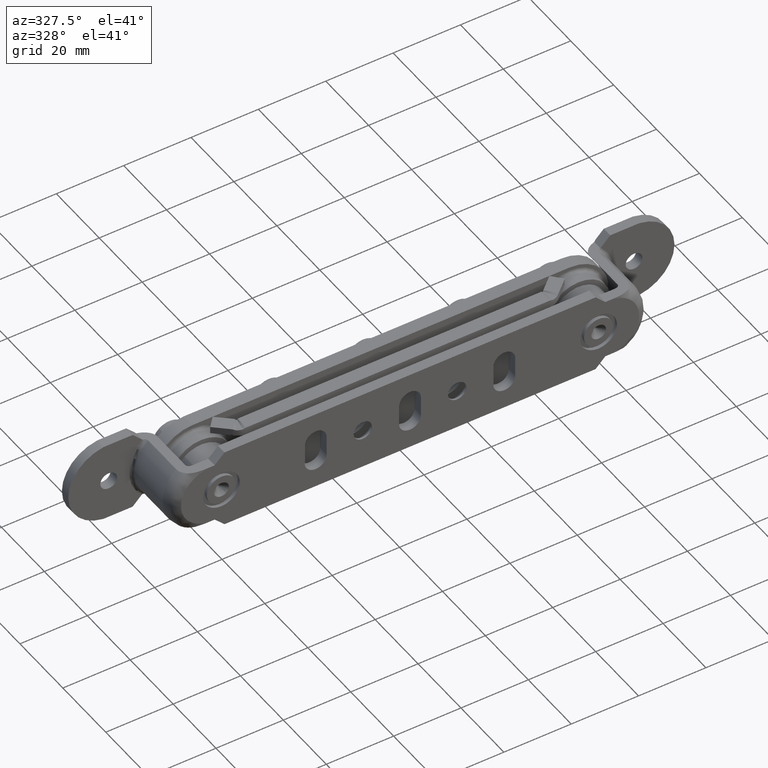
[diagram: clean part render]
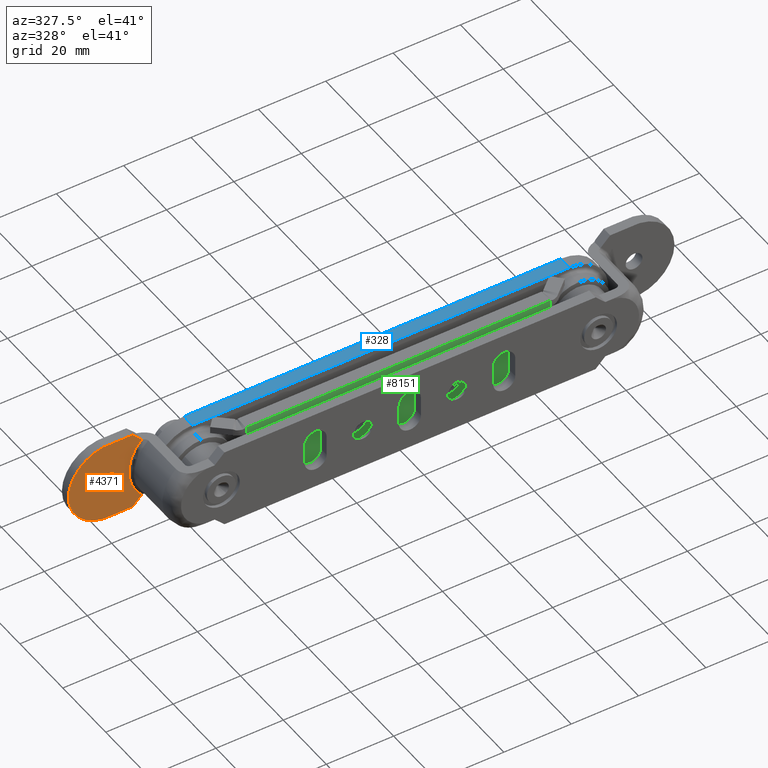
[diagram: same view with three faces highlighted in distinct colors, each labeled with its STEP entity id]
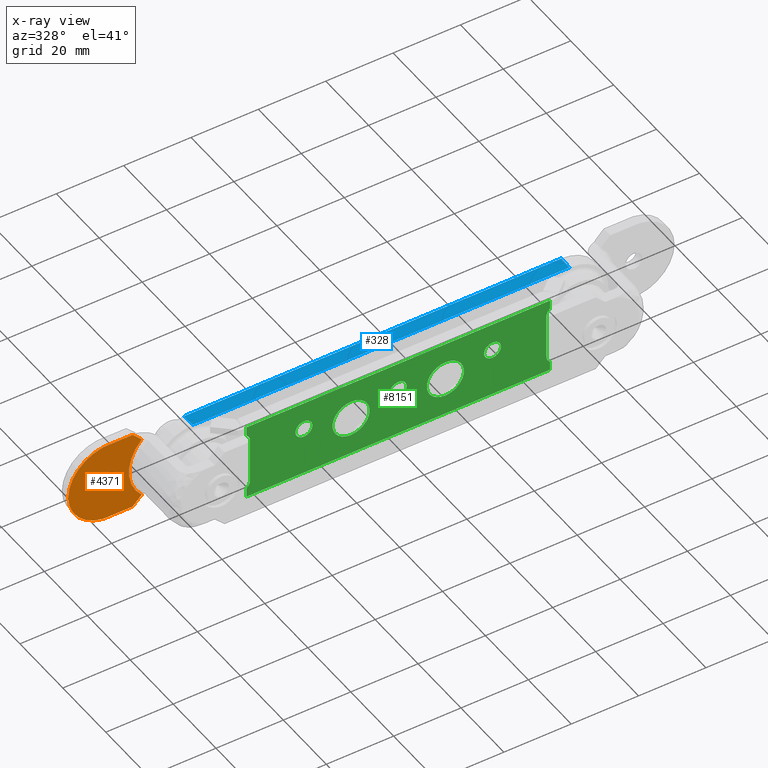
[diagram: x-ray of the same camera — body ghosted, the three highlighted faces saturated]
A machine part, auxiliary view with three faces highlighted in distinct colors.
The next image is the same camera in x-ray (body ghosted, the three faces saturated) — at least one of them is partly hidden behind the body in this view.
Their STEP definitions:

[orange] entity #4371 — the highlighted planar face has unit normal (0, 1, 0).
#10 = ORIENTED_EDGE ( 'NONE', *, *, #6177, .F. ) ;
#24 = ORIENTED_EDGE ( 'NONE', *, *, #1600, .T. ) ;
#217 = VECTOR ( 'NONE', #223, 1000.000000000000000 ) ;
#222 = CIRCLE ( 'NONE', #8465, 13.00000000000000178 ) ;
#223 = DIRECTION ( 'NONE',  ( -0.7071067811865511255, 0.000000000000000000, 0.7071067811865440200 ) ) ;
#227 = EDGE_CURVE ( 'NONE', #6161, #5384, #6175, .T. ) ;
#351 = ORIENTED_EDGE ( 'NONE', *, *, #5373, .T. ) ;
#526 = EDGE_CURVE ( 'NONE', #2860, #6161, #5688, .T. ) ;
#598 = CARTESIAN_POINT ( 'NONE',  ( -78.00000000000000000, 18.00000000000000355, -1.734723475976807094E-15 ) ) ;
#793 = DIRECTION ( 'NONE',  ( 0.000000000000000000, 1.000000000000000000, 0.000000000000000000 ) ) ;
#813 = VECTOR ( 'NONE', #3807, 1000.000000000000000 ) ;
#1064 = LINE ( 'NONE', #2589, #813 ) ;
#1227 = LINE ( 'NONE', #6914, #5154 ) ;
#1291 = DIRECTION ( 'NONE',  ( 0.000000000000000000, 1.000000000000000000, 0.000000000000000000 ) ) ;
#1521 = DIRECTION ( 'NONE',  ( 0.000000000000000000, 0.000000000000000000, 1.000000000000000000 ) ) ;
#1600 = EDGE_CURVE ( 'NONE', #3565, #5023, #6510, .T. ) ;
#1850 = FACE_OUTER_BOUND ( 'NONE', #8646, .T. ) ;
#1986 = DIRECTION ( 'NONE',  ( 0.000000000000000000, 0.000000000000000000, 1.000000000000000000 ) ) ;
#2209 = CARTESIAN_POINT ( 'NONE',  ( -57.24999999999992895, 18.00000000000000355, -1.749999999999946265 ) ) ;
#2389 = FACE_BOUND ( 'NONE', #7142, .T. ) ;
#2444 = DIRECTION ( 'NONE',  ( 0.000000000000000000, 1.000000000000000000, 0.000000000000000000 ) ) ;
#2472 = DIRECTION ( 'NONE',  ( 0.000000000000000000, -0.000000000000000000, 1.000000000000000000 ) ) ;
#2511 = ORIENTED_EDGE ( 'NONE', *, *, #6949, .T. ) ;
#2576 = AXIS2_PLACEMENT_3D ( 'NONE', #5669, #793, #1521 ) ;
#2584 = CARTESIAN_POINT ( 'NONE',  ( -78.00000000000000000, 18.00000000000000355, -1.734723475976807094E-15 ) ) ;
#2589 = CARTESIAN_POINT ( 'NONE',  ( -57.24999999999992895, 18.00000000000000355, 1.749999999999946265 ) ) ;
#2618 = VERTEX_POINT ( 'NONE', #4561 ) ;
#2745 = DIRECTION ( 'NONE',  ( 1.000000000000000000, -0.000000000000000000, 0.000000000000000000 ) ) ;
#2784 = CARTESIAN_POINT ( 'NONE',  ( -59.00000000000000000, 18.00000000000000355, 0.000000000000000000 ) ) ;
#2789 = CARTESIAN_POINT ( 'NONE',  ( -79.54596248337404063, 18.00000000000000355, -11.90000000000000036 ) ) ;
#2860 = VERTEX_POINT ( 'NONE', #5187 ) ;
#3189 = CARTESIAN_POINT ( 'NONE',  ( -55.49999999999999289, 18.00000000000000355, 0.000000000000000000 ) ) ;
#3526 = ORIENTED_EDGE ( 'NONE', *, *, #526, .F. ) ;
#3565 = VERTEX_POINT ( 'NONE', #4423 ) ;
#3566 = ORIENTED_EDGE ( 'NONE', *, *, #227, .F. ) ;
#3649 = CARTESIAN_POINT ( 'NONE',  ( -55.49999999999999289, 18.00000000000000355, -11.90000000000000036 ) ) ;
#3807 = DIRECTION ( 'NONE',  ( 0.7071067811865511255, -0.000000000000000000, 0.7071067811865440200 ) ) ;
#3874 = DIRECTION ( 'NONE',  ( 0.000000000000000000, 1.000000000000000000, 0.000000000000000000 ) ) ;
#3996 = VECTOR ( 'NONE', #7920, 1000.000000000000000 ) ;
#4362 = CARTESIAN_POINT ( 'NONE',  ( -78.00000000000000000, 18.00000000000000355, -2.499999999999996891 ) ) ;
#4371 = ADVANCED_FACE ( 'NONE', ( #2389, #1850 ), #8641, .F. ) ;
#4423 = CARTESIAN_POINT ( 'NONE',  ( -78.00000000000000000, 18.00000000000000355, 2.499999999999993339 ) ) ;
#4561 = CARTESIAN_POINT ( 'NONE',  ( -68.19238815542516363, 18.00000000000000355, 9.192388155425071261 ) ) ;
#4602 = ORIENTED_EDGE ( 'NONE', *, *, #8830, .T. ) ;
#4888 = VERTEX_POINT ( 'NONE', #4996 ) ;
#4996 = CARTESIAN_POINT ( 'NONE',  ( -70.90000000000000568, 18.00000000000000355, 11.89999999999999858 ) ) ;
#5016 = LINE ( 'NONE', #2209, #217 ) ;
#5023 = VERTEX_POINT ( 'NONE', #4362 ) ;
#5154 = VECTOR ( 'NONE', #2745, 1000.000000000000000 ) ;
#5187 = CARTESIAN_POINT ( 'NONE',  ( -70.90000000000000568, 18.00000000000000000, -11.90000000000000036 ) ) ;
#5373 = EDGE_CURVE ( 'NONE', #2860, #8659, #1064, .T. ) ;
#5384 = VERTEX_POINT ( 'NONE', #6569 ) ;
#5405 = AXIS2_PLACEMENT_3D ( 'NONE', #3189, #3874, #2472 ) ;
#5508 = DIRECTION ( 'NONE',  ( 0.000000000000000000, 1.000000000000000000, 0.000000000000000000 ) ) ;
#5650 = AXIS2_PLACEMENT_3D ( 'NONE', #2584, #1291, #6843 ) ;
#5669 = CARTESIAN_POINT ( 'NONE',  ( -78.00000000000000000, 18.00000000000000355, -1.734723475976807094E-15 ) ) ;
#5688 = LINE ( 'NONE', #3649, #3996 ) ;
#5737 = AXIS2_PLACEMENT_3D ( 'NONE', #598, #2444, #6019 ) ;
#6019 = DIRECTION ( 'NONE',  ( 0.000000000000000000, 0.000000000000000000, 1.000000000000000000 ) ) ;
#6044 = ORIENTED_EDGE ( 'NONE', *, *, #7301, .T. ) ;
#6161 = VERTEX_POINT ( 'NONE', #2789 ) ;
#6175 = CIRCLE ( 'NONE', #5737, 12.00000000000000000 ) ;
#6177 = EDGE_CURVE ( 'NONE', #5384, #4888, #1227, .T. ) ;
#6265 = CARTESIAN_POINT ( 'NONE',  ( -68.19238815542516363, 18.00000000000000355, -9.192388155425071261 ) ) ;
#6510 = CIRCLE ( 'NONE', #5650, 2.499999999999995115 ) ;
#6569 = CARTESIAN_POINT ( 'NONE',  ( -79.54596248337401221, 18.00000000000000355, 11.90000000000000036 ) ) ;
#6843 = DIRECTION ( 'NONE',  ( 0.000000000000000000, 0.000000000000000000, 1.000000000000000000 ) ) ;
#6914 = CARTESIAN_POINT ( 'NONE',  ( -55.49999999999999289, 18.00000000000000355, 11.90000000000000036 ) ) ;
#6949 = EDGE_CURVE ( 'NONE', #2618, #4888, #5016, .T. ) ;
#7142 = EDGE_LOOP ( 'NONE', ( #24, #4602 ) ) ;
#7301 = EDGE_CURVE ( 'NONE', #8659, #2618, #222, .T. ) ;
#7797 = CIRCLE ( 'NONE', #2576, 2.499999999999995115 ) ;
#7920 = DIRECTION ( 'NONE',  ( -1.000000000000000000, 0.000000000000000000, 0.000000000000000000 ) ) ;
#8465 = AXIS2_PLACEMENT_3D ( 'NONE', #2784, #5508, #1986 ) ;
#8641 = PLANE ( 'NONE',  #5405 ) ;
#8646 = EDGE_LOOP ( 'NONE', ( #10, #3566, #3526, #351, #6044, #2511 ) ) ;
#8659 = VERTEX_POINT ( 'NONE', #6265 ) ;
#8830 = EDGE_CURVE ( 'NONE', #5023, #3565, #7797, .T. ) ;

[blue] entity #328 — the highlighted planar face has unit normal (-0, 0, -1).
#95 = PLANE ( 'NONE',  #4823 ) ;
#328 = ADVANCED_FACE ( 'NONE', ( #4923 ), #95, .F. ) ;
#384 = VECTOR ( 'NONE', #2577, 1000.000000000000000 ) ;
#489 = VERTEX_POINT ( 'NONE', #3609 ) ;
#711 = VERTEX_POINT ( 'NONE', #3871 ) ;
#908 = LINE ( 'NONE', #7238, #1770 ) ;
#1016 = ORIENTED_EDGE ( 'NONE', *, *, #8304, .F. ) ;
#1688 = EDGE_LOOP ( 'NONE', ( #7016, #1016, #8470, #5471 ) ) ;
#1707 = DIRECTION ( 'NONE',  ( -1.000000000000000000, -0.000000000000000000, -0.000000000000000000 ) ) ;
#1770 = VECTOR ( 'NONE', #6419, 1000.000000000000000 ) ;
#2413 = EDGE_CURVE ( 'NONE', #3961, #711, #908, .T. ) ;
#2577 = DIRECTION ( 'NONE',  ( -1.000000000000000000, -0.000000000000000000, -0.000000000000000000 ) ) ;
#3243 = VECTOR ( 'NONE', #1707, 1000.000000000000000 ) ;
#3368 = DIRECTION ( 'NONE',  ( -0.000000000000000000, -1.000000000000000000, -0.000000000000000000 ) ) ;
#3551 = LINE ( 'NONE', #6821, #4306 ) ;
#3609 = CARTESIAN_POINT ( 'NONE',  ( -56.00000000000000711, 4.000000000000000000, -11.49999999999999822 ) ) ;
#3801 = CARTESIAN_POINT ( 'NONE',  ( 56.00000000000000711, 4.000000000000000000, -11.49999999999999822 ) ) ;
#3858 = LINE ( 'NONE', #4542, #3243 ) ;
#3871 = CARTESIAN_POINT ( 'NONE',  ( 56.00000000000000711, 0.000000000000000000, -11.49999999999999822 ) ) ;
#3873 = CARTESIAN_POINT ( 'NONE',  ( -56.00000000000000711, 0.000000000000000000, -11.49999999999999822 ) ) ;
#3961 = VERTEX_POINT ( 'NONE', #3801 ) ;
#4111 = CARTESIAN_POINT ( 'NONE',  ( -56.00000000000000711, 4.000000000000000000, -11.49999999999999822 ) ) ;
#4306 = VECTOR ( 'NONE', #3368, 1000.000000000000000 ) ;
#4542 = CARTESIAN_POINT ( 'NONE',  ( -56.00000000000000711, 4.000000000000000000, -11.49999999999999822 ) ) ;
#4823 = AXIS2_PLACEMENT_3D ( 'NONE', #4111, #4841, #7694 ) ;
#4841 = DIRECTION ( 'NONE',  ( 0.000000000000000000, 0.000000000000000000, 1.000000000000000000 ) ) ;
#4923 = FACE_OUTER_BOUND ( 'NONE', #1688, .T. ) ;
#5471 = ORIENTED_EDGE ( 'NONE', *, *, #2413, .T. ) ;
#5726 = EDGE_CURVE ( 'NONE', #711, #8198, #5883, .T. ) ;
#5883 = LINE ( 'NONE', #8655, #384 ) ;
#6419 = DIRECTION ( 'NONE',  ( -0.000000000000000000, -1.000000000000000000, -0.000000000000000000 ) ) ;
#6821 = CARTESIAN_POINT ( 'NONE',  ( -56.00000000000000711, 4.000000000000000000, -11.49999999999999822 ) ) ;
#7016 = ORIENTED_EDGE ( 'NONE', *, *, #5726, .T. ) ;
#7238 = CARTESIAN_POINT ( 'NONE',  ( 56.00000000000000711, 4.000000000000000000, -11.49999999999999822 ) ) ;
#7567 = EDGE_CURVE ( 'NONE', #3961, #489, #3858, .T. ) ;
#7694 = DIRECTION ( 'NONE',  ( 1.000000000000000000, 0.000000000000000000, -0.000000000000000000 ) ) ;
#8198 = VERTEX_POINT ( 'NONE', #3873 ) ;
#8304 = EDGE_CURVE ( 'NONE', #489, #8198, #3551, .T. ) ;
#8470 = ORIENTED_EDGE ( 'NONE', *, *, #7567, .F. ) ;
#8655 = CARTESIAN_POINT ( 'NONE',  ( -56.00000000000000711, 0.000000000000000000, -11.49999999999999822 ) ) ;

[green] entity #8151 — the highlighted planar face has unit normal (0, -1, 0).
#43 = VERTEX_POINT ( 'NONE', #4815 ) ;
#62 = AXIS2_PLACEMENT_3D ( 'NONE', #7764, #6350, #159 ) ;
#97 = CIRCLE ( 'NONE', #8765, 5.499999999999998224 ) ;
#130 = DIRECTION ( 'NONE',  ( 0.000000000000000000, 0.000000000000000000, 1.000000000000000000 ) ) ;
#159 = DIRECTION ( 'NONE',  ( 0.000000000000000000, 0.000000000000000000, 1.000000000000000000 ) ) ;
#172 = CARTESIAN_POINT ( 'NONE',  ( 45.11980067765094304, 4.000000000000031086, 2.662298028353868418 ) ) ;
#196 = VERTEX_POINT ( 'NONE', #3976 ) ;
#235 = VERTEX_POINT ( 'NONE', #5924 ) ;
#295 = EDGE_CURVE ( 'NONE', #235, #6188, #5475, .T. ) ;
#331 = CARTESIAN_POINT ( 'NONE',  ( -45.50000000000000000, 4.000000000000003553, 0.000000000000000000 ) ) ;
#457 = VECTOR ( 'NONE', #1699, 1000.000000000000000 ) ;
#545 = FACE_BOUND ( 'NONE', #5912, .T. ) ;
#741 = EDGE_LOOP ( 'NONE', ( #5788, #3014 ) ) ;
#745 = CARTESIAN_POINT ( 'NONE',  ( -45.11980067765095725, 4.000000000000003553, 22.99999999999999289 ) ) ;
#801 = VERTEX_POINT ( 'NONE', #172 ) ;
#827 = AXIS2_PLACEMENT_3D ( 'NONE', #4104, #2037, #5421 ) ;
#916 = ORIENTED_EDGE ( 'NONE', *, *, #7370, .F. ) ;
#1063 = EDGE_CURVE ( 'NONE', #7546, #4344, #1891, .T. ) ;
#1114 = CIRCLE ( 'NONE', #827, 2.499999999999998668 ) ;
#1167 = ORIENTED_EDGE ( 'NONE', *, *, #8068, .F. ) ;
#1202 = EDGE_CURVE ( 'NONE', #5001, #4062, #7587, .T. ) ;
#1265 = CARTESIAN_POINT ( 'NONE',  ( 13.99999999999999112, 4.000000000000003553, 5.999999999999994671 ) ) ;
#1362 = VERTEX_POINT ( 'NONE', #1656 ) ;
#1382 = CIRCLE ( 'NONE', #7748, 3.000000000000009770 ) ;
#1404 = CIRCLE ( 'NONE', #6450, 5.500000000000001776 ) ;
#1449 = ORIENTED_EDGE ( 'NONE', *, *, #5734, .F. ) ;
#1475 = EDGE_CURVE ( 'NONE', #801, #3024, #2489, .T. ) ;
#1483 = EDGE_LOOP ( 'NONE', ( #3811, #7565, #916, #7796, #7602, #8514, #1167, #7659, #6964, #2750, #6829, #3324 ) ) ;
#1508 = CIRCLE ( 'NONE', #62, 2.499999999999998668 ) ;
#1573 = CARTESIAN_POINT ( 'NONE',  ( -45.50000000000000000, 4.000000000000003553, 22.99999999999999289 ) ) ;
#1634 = CARTESIAN_POINT ( 'NONE',  ( -47.00000000000000000, 4.000000000000003553, 17.99999999999998934 ) ) ;
#1656 = CARTESIAN_POINT ( 'NONE',  ( -44.00000000000000000, 4.000000000000003553, 4.999999999999997335 ) ) ;
#1696 = CIRCLE ( 'NONE', #3699, 5.499999999999998224 ) ;
#1699 = DIRECTION ( 'NONE',  ( 0.000000000000000000, 0.000000000000000000, -1.000000000000000000 ) ) ;
#1790 = VECTOR ( 'NONE', #2636, 1000.000000000000000 ) ;
#1802 = CARTESIAN_POINT ( 'NONE',  ( 3.061616997868383141E-16, 4.000000000000031086, 11.99999999999999822 ) ) ;
#1818 = AXIS2_PLACEMENT_3D ( 'NONE', #2402, #7290, #8610 ) ;
#1849 = DIRECTION ( 'NONE',  ( -1.000000000000000000, -1.224646799147352961E-16, 0.000000000000000000 ) ) ;
#1853 = DIRECTION ( 'NONE',  ( 0.000000000000000000, 0.000000000000000000, 1.000000000000000000 ) ) ;
#1891 = CIRCLE ( 'NONE', #8108, 2.499999999999998668 ) ;
#1934 = VERTEX_POINT ( 'NONE', #6891 ) ;
#1992 = DIRECTION ( 'NONE',  ( -4.374111997161265975E-33, 1.000000000000000000, 0.000000000000000000 ) ) ;
#2037 = DIRECTION ( 'NONE',  ( -4.374111997161265975E-33, 1.000000000000000000, 0.000000000000000000 ) ) ;
#2058 = VECTOR ( 'NONE', #130, 1000.000000000000000 ) ;
#2083 = CARTESIAN_POINT ( 'NONE',  ( 45.11980067765095725, 4.000000000000031086, 22.99999999999999289 ) ) ;
#2135 = ORIENTED_EDGE ( 'NONE', *, *, #4107, .F. ) ;
#2218 = CIRCLE ( 'NONE', #8011, 2.499999999999998668 ) ;
#2242 = DIRECTION ( 'NONE',  ( -1.224646799147353454E-16, 1.000000000000000000, 0.000000000000000000 ) ) ;
#2243 = CIRCLE ( 'NONE', #6718, 3.000000000000009770 ) ;
#2288 = VERTEX_POINT ( 'NONE', #7475 ) ;
#2317 = ORIENTED_EDGE ( 'NONE', *, *, #5032, .F. ) ;
#2319 = ORIENTED_EDGE ( 'NONE', *, *, #6195, .F. ) ;
#2369 = CARTESIAN_POINT ( 'NONE',  ( 28.00000000000000355, 4.000000000000031086, 14.49999999999999822 ) ) ;
#2402 = CARTESIAN_POINT ( 'NONE',  ( 0.000000000000000000, 4.000000000000031086, 14.49999999999999822 ) ) ;
#2489 = LINE ( 'NONE', #5259, #457 ) ;
#2636 = DIRECTION ( 'NONE',  ( 0.000000000000000000, 0.000000000000000000, -1.000000000000000000 ) ) ;
#2739 = EDGE_CURVE ( 'NONE', #43, #8826, #3507, .T. ) ;
#2750 = ORIENTED_EDGE ( 'NONE', *, *, #1202, .F. ) ;
#3014 = ORIENTED_EDGE ( 'NONE', *, *, #3844, .F. ) ;
#3024 = VERTEX_POINT ( 'NONE', #8259 ) ;
#3047 = LINE ( 'NONE', #1573, #3533 ) ;
#3055 = EDGE_LOOP ( 'NONE', ( #8656, #2135 ) ) ;
#3079 = ORIENTED_EDGE ( 'NONE', *, *, #6118, .F. ) ;
#3105 = CARTESIAN_POINT ( 'NONE',  ( 28.00000000000000355, 4.000000000000031086, 12.00000000000000000 ) ) ;
#3146 = DIRECTION ( 'NONE',  ( -1.224646799147352961E-16, 1.000000000000000000, 0.000000000000000000 ) ) ;
#3168 = CARTESIAN_POINT ( 'NONE',  ( -45.11980067765095725, 4.000000000000003553, 22.99999999999999289 ) ) ;
#3176 = LINE ( 'NONE', #8805, #8015 ) ;
#3302 = EDGE_LOOP ( 'NONE', ( #8184, #1449 ) ) ;
#3324 = ORIENTED_EDGE ( 'NONE', *, *, #295, .T. ) ;
#3366 = DIRECTION ( 'NONE',  ( -1.000000000000000000, 0.000000000000000000, 0.000000000000000000 ) ) ;
#3507 = LINE ( 'NONE', #8910, #2058 ) ;
#3527 = CIRCLE ( 'NONE', #4258, 3.000000000000002665 ) ;
#3533 = VECTOR ( 'NONE', #7086, 1000.000000000000000 ) ;
#3603 = ORIENTED_EDGE ( 'NONE', *, *, #5621, .F. ) ;
#3648 = DIRECTION ( 'NONE',  ( 0.000000000000000000, 0.000000000000000000, 1.000000000000000000 ) ) ;
#3698 = EDGE_CURVE ( 'NONE', #8722, #1362, #3176, .T. ) ;
#3699 = AXIS2_PLACEMENT_3D ( 'NONE', #3830, #7278, #1853 ) ;
#3708 = CARTESIAN_POINT ( 'NONE',  ( -13.99999999999998401, 4.000000000000003553, 11.49999999999999645 ) ) ;
#3751 = DIRECTION ( 'NONE',  ( -4.374111997161265975E-33, 1.000000000000000000, 0.000000000000000000 ) ) ;
#3761 = DIRECTION ( 'NONE',  ( 0.000000000000000000, 0.000000000000000000, 1.000000000000000000 ) ) ;
#3809 = AXIS2_PLACEMENT_3D ( 'NONE', #4536, #8792, #4670 ) ;
#3811 = ORIENTED_EDGE ( 'NONE', *, *, #7317, .F. ) ;
#3830 = CARTESIAN_POINT ( 'NONE',  ( -13.99999999999998401, 4.000000000000003553, 11.49999999999999645 ) ) ;
#3844 = EDGE_CURVE ( 'NONE', #7326, #4286, #1508, .T. ) ;
#3976 = CARTESIAN_POINT ( 'NONE',  ( 28.00000000000000355, 4.000000000000031086, 16.99999999999999645 ) ) ;
#4058 = CARTESIAN_POINT ( 'NONE',  ( 45.11980067765095725, 4.000000000000031086, 20.33770197164612270 ) ) ;
#4062 = VERTEX_POINT ( 'NONE', #4622 ) ;
#4104 = CARTESIAN_POINT ( 'NONE',  ( 28.00000000000000355, 4.000000000000031086, 14.49999999999999822 ) ) ;
#4107 = EDGE_CURVE ( 'NONE', #7207, #6675, #7437, .T. ) ;
#4109 = AXIS2_PLACEMENT_3D ( 'NONE', #6331, #5823, #3648 ) ;
#4258 = AXIS2_PLACEMENT_3D ( 'NONE', #1634, #4970, #7146 ) ;
#4286 = VERTEX_POINT ( 'NONE', #6463 ) ;
#4334 = VERTEX_POINT ( 'NONE', #3105 ) ;
#4344 = VERTEX_POINT ( 'NONE', #1802 ) ;
#4373 = DIRECTION ( 'NONE',  ( 1.000000000000000000, 0.000000000000000000, 0.000000000000000000 ) ) ;
#4479 = EDGE_LOOP ( 'NONE', ( #3079, #3603 ) ) ;
#4536 = CARTESIAN_POINT ( 'NONE',  ( 13.99999999999999112, 4.000000000000003553, 11.49999999999999645 ) ) ;
#4544 = CARTESIAN_POINT ( 'NONE',  ( 0.000000000000000000, 4.000000000000031086, 14.49999999999999822 ) ) ;
#4606 = PLANE ( 'NONE',  #7645 ) ;
#4622 = CARTESIAN_POINT ( 'NONE',  ( -45.11980067765095725, 4.000000000000003553, 20.33770197164612270 ) ) ;
#4670 = DIRECTION ( 'NONE',  ( 0.000000000000000000, 0.000000000000000000, 1.000000000000000000 ) ) ;
#4815 = CARTESIAN_POINT ( 'NONE',  ( 43.99999999999999289, 4.000000000000031086, 5.000000000000011546 ) ) ;
#4970 = DIRECTION ( 'NONE',  ( -1.224646799147353454E-16, 1.000000000000000000, 0.000000000000000000 ) ) ;
#5001 = VERTEX_POINT ( 'NONE', #3168 ) ;
#5032 = EDGE_CURVE ( 'NONE', #196, #4334, #2218, .T. ) ;
#5042 = CARTESIAN_POINT ( 'NONE',  ( 44.00000000000000711, 4.000000000000031086, 17.99999999999997513 ) ) ;
#5114 = VECTOR ( 'NONE', #8289, 1000.000000000000000 ) ;
#5256 = DIRECTION ( 'NONE',  ( 1.000000000000000000, 1.224646799147352961E-16, 0.000000000000000000 ) ) ;
#5259 = CARTESIAN_POINT ( 'NONE',  ( 45.11980067765095725, 4.000000000000031086, 22.99999999999999289 ) ) ;
#5310 = VECTOR ( 'NONE', #5256, 1000.000000000000000 ) ;
#5311 = CARTESIAN_POINT ( 'NONE',  ( 0.000000000000000000, 4.000000000000031086, 16.99999999999999645 ) ) ;
#5329 = FACE_BOUND ( 'NONE', #3302, .T. ) ;
#5421 = DIRECTION ( 'NONE',  ( 0.000000000000000000, 0.000000000000000000, 1.000000000000000000 ) ) ;
#5475 = LINE ( 'NONE', #2083, #5114 ) ;
#5500 = CARTESIAN_POINT ( 'NONE',  ( -44.00000000000000000, 4.000000000000003553, 17.99999999999998934 ) ) ;
#5621 = EDGE_CURVE ( 'NONE', #6781, #2288, #97, .T. ) ;
#5734 = EDGE_CURVE ( 'NONE', #4344, #7546, #7904, .T. ) ;
#5782 = DIRECTION ( 'NONE',  ( -1.224646799147353454E-16, 1.000000000000000000, 0.000000000000000000 ) ) ;
#5788 = ORIENTED_EDGE ( 'NONE', *, *, #6928, .F. ) ;
#5800 = LINE ( 'NONE', #331, #5310 ) ;
#5823 = DIRECTION ( 'NONE',  ( -4.374111997161265975E-33, 1.000000000000000000, 0.000000000000000000 ) ) ;
#5856 = DIRECTION ( 'NONE',  ( -4.374111997161265975E-33, 1.000000000000000000, 0.000000000000000000 ) ) ;
#5912 = EDGE_LOOP ( 'NONE', ( #2317, #2319 ) ) ;
#5915 = CARTESIAN_POINT ( 'NONE',  ( -45.50000000000000000, 4.000000000000003553, 22.99999999999999289 ) ) ;
#5924 = CARTESIAN_POINT ( 'NONE',  ( 45.11980067765095725, 4.000000000000031086, 22.99999999999999289 ) ) ;
#5963 = LINE ( 'NONE', #8602, #6888 ) ;
#6014 = DIRECTION ( 'NONE',  ( 0.000000000000000000, 0.000000000000000000, -1.000000000000000000 ) ) ;
#6115 = EDGE_CURVE ( 'NONE', #1934, #7082, #5963, .T. ) ;
#6118 = EDGE_CURVE ( 'NONE', #2288, #6781, #1696, .T. ) ;
#6187 = CIRCLE ( 'NONE', #7194, 3.000000000000002665 ) ;
#6188 = VERTEX_POINT ( 'NONE', #4058 ) ;
#6195 = EDGE_CURVE ( 'NONE', #4334, #196, #1114, .T. ) ;
#6233 = EDGE_CURVE ( 'NONE', #6675, #7207, #1404, .T. ) ;
#6331 = CARTESIAN_POINT ( 'NONE',  ( -27.99999999999999645, 4.000000000000031086, 14.49999999999999822 ) ) ;
#6350 = DIRECTION ( 'NONE',  ( -4.374111997161265975E-33, 1.000000000000000000, 0.000000000000000000 ) ) ;
#6450 = AXIS2_PLACEMENT_3D ( 'NONE', #8100, #1992, #8912 ) ;
#6463 = CARTESIAN_POINT ( 'NONE',  ( -27.99999999999999645, 4.000000000000031086, 16.99999999999999645 ) ) ;
#6675 = VERTEX_POINT ( 'NONE', #6906 ) ;
#6681 = FACE_OUTER_BOUND ( 'NONE', #1483, .T. ) ;
#6718 = AXIS2_PLACEMENT_3D ( 'NONE', #6773, #8277, #3366 ) ;
#6773 = CARTESIAN_POINT ( 'NONE',  ( 47.00000000000000711, 4.000000000000031086, 17.99999999999997513 ) ) ;
#6781 = VERTEX_POINT ( 'NONE', #7721 ) ;
#6829 = ORIENTED_EDGE ( 'NONE', *, *, #7454, .T. ) ;
#6888 = VECTOR ( 'NONE', #6014, 1000.000000000000000 ) ;
#6891 = CARTESIAN_POINT ( 'NONE',  ( -45.11980067765095725, 4.000000000000031086, 2.662298028353868418 ) ) ;
#6906 = CARTESIAN_POINT ( 'NONE',  ( 13.99999999999999112, 4.000000000000003553, 16.99999999999999645 ) ) ;
#6928 = EDGE_CURVE ( 'NONE', #4286, #7326, #8744, .T. ) ;
#6931 = EDGE_CURVE ( 'NONE', #4062, #8722, #3527, .T. ) ;
#6964 = ORIENTED_EDGE ( 'NONE', *, *, #6931, .F. ) ;
#7082 = VERTEX_POINT ( 'NONE', #7318 ) ;
#7086 = DIRECTION ( 'NONE',  ( 1.000000000000000000, 1.224646799147352961E-16, 0.000000000000000000 ) ) ;
#7146 = DIRECTION ( 'NONE',  ( -1.000000000000000000, 0.000000000000000000, 0.000000000000000000 ) ) ;
#7172 = DIRECTION ( 'NONE',  ( -4.374111997161265975E-33, 1.000000000000000000, 0.000000000000000000 ) ) ;
#7194 = AXIS2_PLACEMENT_3D ( 'NONE', #7791, #5782, #8551 ) ;
#7207 = VERTEX_POINT ( 'NONE', #1265 ) ;
#7278 = DIRECTION ( 'NONE',  ( -4.374111997161265975E-33, 1.000000000000000000, 0.000000000000000000 ) ) ;
#7290 = DIRECTION ( 'NONE',  ( -4.374111997161265975E-33, 1.000000000000000000, 0.000000000000000000 ) ) ;
#7317 = EDGE_CURVE ( 'NONE', #8826, #6188, #2243, .T. ) ;
#7318 = CARTESIAN_POINT ( 'NONE',  ( -45.11980067765095725, 4.000000000000003553, 0.000000000000000000 ) ) ;
#7326 = VERTEX_POINT ( 'NONE', #8362 ) ;
#7370 = EDGE_CURVE ( 'NONE', #801, #43, #1382, .T. ) ;
#7437 = CIRCLE ( 'NONE', #3809, 5.500000000000001776 ) ;
#7448 = DIRECTION ( 'NONE',  ( 0.000000000000000000, 0.000000000000000000, -1.000000000000000000 ) ) ;
#7454 = EDGE_CURVE ( 'NONE', #5001, #235, #3047, .T. ) ;
#7475 = CARTESIAN_POINT ( 'NONE',  ( -13.99999999999998401, 4.000000000000003553, 16.99999999999999289 ) ) ;
#7546 = VERTEX_POINT ( 'NONE', #5311 ) ;
#7565 = ORIENTED_EDGE ( 'NONE', *, *, #2739, .F. ) ;
#7587 = LINE ( 'NONE', #745, #1790 ) ;
#7602 = ORIENTED_EDGE ( 'NONE', *, *, #7785, .F. ) ;
#7645 = AXIS2_PLACEMENT_3D ( 'NONE', #5915, #3146, #1849 ) ;
#7659 = ORIENTED_EDGE ( 'NONE', *, *, #3698, .F. ) ;
#7710 = DIRECTION ( 'NONE',  ( 0.000000000000000000, 0.000000000000000000, 1.000000000000000000 ) ) ;
#7721 = CARTESIAN_POINT ( 'NONE',  ( -13.99999999999998401, 4.000000000000003553, 5.999999999999996447 ) ) ;
#7748 = AXIS2_PLACEMENT_3D ( 'NONE', #8448, #2242, #4373 ) ;
#7764 = CARTESIAN_POINT ( 'NONE',  ( -27.99999999999999645, 4.000000000000031086, 14.49999999999999822 ) ) ;
#7785 = EDGE_CURVE ( 'NONE', #7082, #3024, #5800, .T. ) ;
#7791 = CARTESIAN_POINT ( 'NONE',  ( -47.00000000000000000, 4.000000000000003553, 4.999999999999997335 ) ) ;
#7796 = ORIENTED_EDGE ( 'NONE', *, *, #1475, .T. ) ;
#7904 = CIRCLE ( 'NONE', #1818, 2.499999999999998668 ) ;
#8011 = AXIS2_PLACEMENT_3D ( 'NONE', #2369, #7172, #3761 ) ;
#8015 = VECTOR ( 'NONE', #7448, 1000.000000000000000 ) ;
#8052 = FACE_BOUND ( 'NONE', #3055, .T. ) ;
#8068 = EDGE_CURVE ( 'NONE', #1362, #1934, #6187, .T. ) ;
#8096 = FACE_BOUND ( 'NONE', #4479, .T. ) ;
#8100 = CARTESIAN_POINT ( 'NONE',  ( 13.99999999999999112, 4.000000000000003553, 11.49999999999999645 ) ) ;
#8108 = AXIS2_PLACEMENT_3D ( 'NONE', #4544, #5856, #8585 ) ;
#8141 = FACE_BOUND ( 'NONE', #741, .T. ) ;
#8151 = ADVANCED_FACE ( 'NONE', ( #5329, #8141, #545, #8096, #8052, #6681 ), #4606, .T. ) ;
#8184 = ORIENTED_EDGE ( 'NONE', *, *, #1063, .F. ) ;
#8259 = CARTESIAN_POINT ( 'NONE',  ( 45.11980067765094304, 4.000000000000031086, 0.000000000000000000 ) ) ;
#8277 = DIRECTION ( 'NONE',  ( -1.224646799147353454E-16, 1.000000000000000000, 0.000000000000000000 ) ) ;
#8289 = DIRECTION ( 'NONE',  ( 0.000000000000000000, 0.000000000000000000, -1.000000000000000000 ) ) ;
#8362 = CARTESIAN_POINT ( 'NONE',  ( -27.99999999999999645, 4.000000000000031086, 12.00000000000000000 ) ) ;
#8448 = CARTESIAN_POINT ( 'NONE',  ( 46.99999999999999289, 4.000000000000031086, 5.000000000000011546 ) ) ;
#8514 = ORIENTED_EDGE ( 'NONE', *, *, #6115, .F. ) ;
#8551 = DIRECTION ( 'NONE',  ( 1.000000000000000000, 0.000000000000000000, 0.000000000000000000 ) ) ;
#8585 = DIRECTION ( 'NONE',  ( 0.000000000000000000, 0.000000000000000000, 1.000000000000000000 ) ) ;
#8602 = CARTESIAN_POINT ( 'NONE',  ( -45.11980067765095725, 4.000000000000003553, 22.99999999999999289 ) ) ;
#8610 = DIRECTION ( 'NONE',  ( 0.000000000000000000, 0.000000000000000000, 1.000000000000000000 ) ) ;
#8656 = ORIENTED_EDGE ( 'NONE', *, *, #6233, .F. ) ;
#8722 = VERTEX_POINT ( 'NONE', #5500 ) ;
#8744 = CIRCLE ( 'NONE', #4109, 2.499999999999998668 ) ;
#8765 = AXIS2_PLACEMENT_3D ( 'NONE', #3708, #3751, #7710 ) ;
#8792 = DIRECTION ( 'NONE',  ( -4.374111997161265975E-33, 1.000000000000000000, 0.000000000000000000 ) ) ;
#8805 = CARTESIAN_POINT ( 'NONE',  ( -44.00000000000000000, 4.000000000000003553, 4.999999999999997335 ) ) ;
#8826 = VERTEX_POINT ( 'NONE', #5042 ) ;
#8910 = CARTESIAN_POINT ( 'NONE',  ( 43.99999999999999289, 4.000000000000031086, 5.000000000000011546 ) ) ;
#8912 = DIRECTION ( 'NONE',  ( 0.000000000000000000, 0.000000000000000000, 1.000000000000000000 ) ) ;